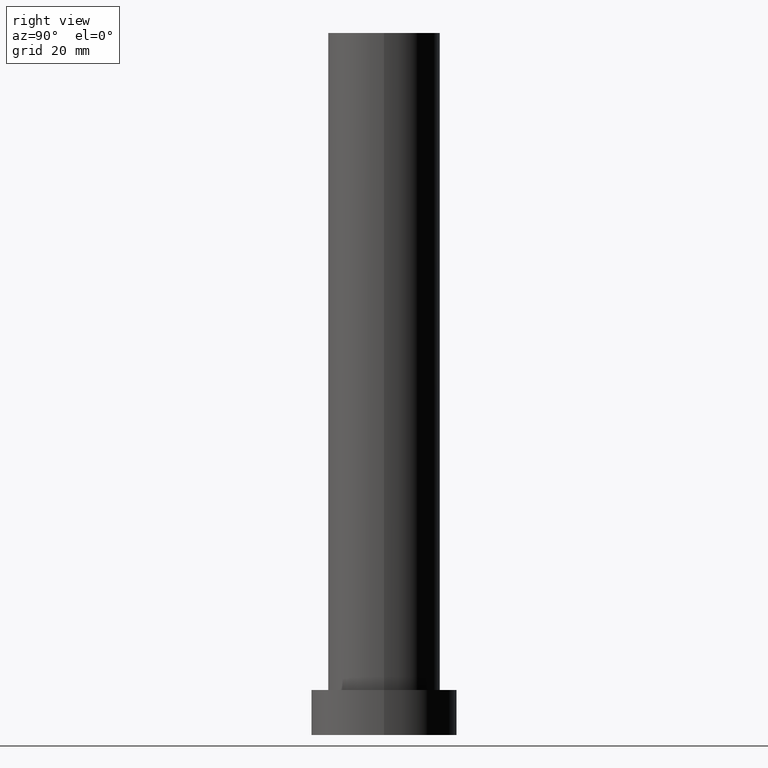
[diagram: clean part render]
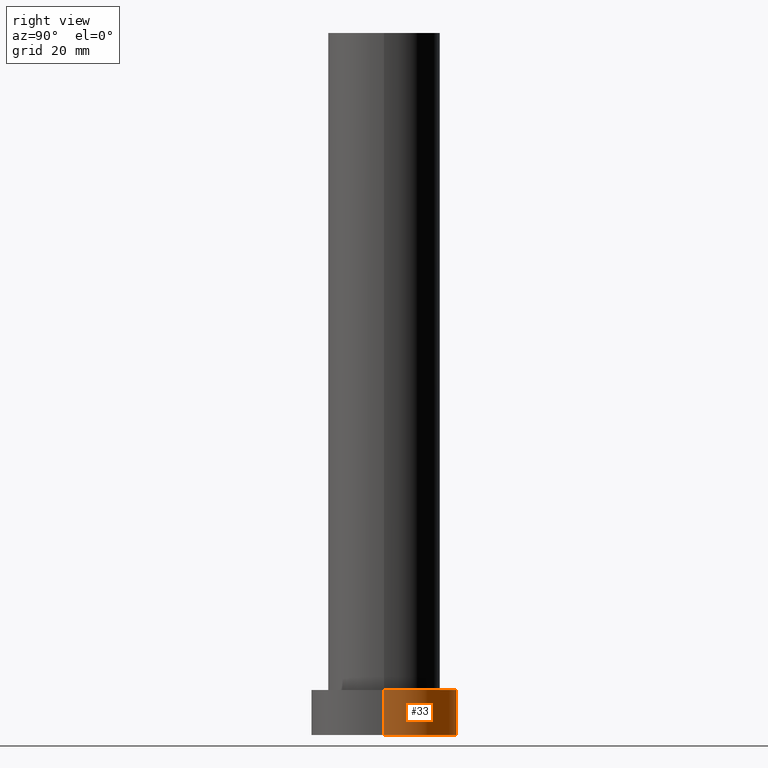
[diagram: same view with one face highlighted and labeled with its STEP entity id]
A machine part, right view. The second image highlights one B-rep face of the part: STEP entity #33.
In plain terms, the highlighted cylindrical surface (partial cylindrical patch) has radius 13 mm, axis along (-0, -0, -1).
Its self-contained STEP definition (entity closure, byte-faithful):
#4 = ORIENTED_EDGE ( 'NONE', *, *, #95, .T. ) ;
#20 = DIRECTION ( 'NONE',  ( -1.000000000000000000, 0.000000000000000000, 0.000000000000000000 ) ) ;
#24 = ORIENTED_EDGE ( 'NONE', *, *, #231, .F. ) ;
#26 = AXIS2_PLACEMENT_3D ( 'NONE', #30, #72, #53 ) ;
#30 = CARTESIAN_POINT ( 'NONE',  ( 0.000000000000000000, 0.000000000000000000, 8.000000000000000000 ) ) ;
#31 = LINE ( 'NONE', #88, #58 ) ;
#32 = VECTOR ( 'NONE', #158, 1000.000000000000000 ) ;
#33 = ADVANCED_FACE ( 'NONE', ( #38 ), #215, .T. ) ;
#34 = EDGE_CURVE ( 'NONE', #164, #203, #76, .T. ) ;
#38 = FACE_OUTER_BOUND ( 'NONE', #63, .T. ) ;
#47 = CARTESIAN_POINT ( 'NONE',  ( 13.00000000000000178, 1.592040838891559293E-15, 8.000000000000000000 ) ) ;
#50 = CARTESIAN_POINT ( 'NONE',  ( -13.00000000000000178, 0.000000000000000000, 0.000000000000000000 ) ) ;
#53 = DIRECTION ( 'NONE',  ( 1.000000000000000000, 0.000000000000000000, 0.000000000000000000 ) ) ;
#58 = VECTOR ( 'NONE', #211, 1000.000000000000000 ) ;
#63 = EDGE_LOOP ( 'NONE', ( #144, #165, #4, #24 ) ) ;
#72 = DIRECTION ( 'NONE',  ( 0.000000000000000000, 0.000000000000000000, 1.000000000000000000 ) ) ;
#75 = CARTESIAN_POINT ( 'NONE',  ( 13.00000000000000178, 1.592040838891559293E-15, 8.000000000000000000 ) ) ;
#76 = LINE ( 'NONE', #75, #32 ) ;
#88 = CARTESIAN_POINT ( 'NONE',  ( -13.00000000000000178, 0.000000000000000000, 8.000000000000000000 ) ) ;
#95 = EDGE_CURVE ( 'NONE', #203, #250, #245, .T. ) ;
#97 = DIRECTION ( 'NONE',  ( 0.000000000000000000, 0.000000000000000000, 1.000000000000000000 ) ) ;
#109 = CARTESIAN_POINT ( 'NONE',  ( 13.00000000000000178, 1.592040838891559293E-15, 0.000000000000000000 ) ) ;
#115 = AXIS2_PLACEMENT_3D ( 'NONE', #255, #97, #201 ) ;
#117 = DIRECTION ( 'NONE',  ( -0.000000000000000000, -0.000000000000000000, -1.000000000000000000 ) ) ;
#136 = CIRCLE ( 'NONE', #26, 13.00000000000000178 ) ;
#144 = ORIENTED_EDGE ( 'NONE', *, *, #193, .F. ) ;
#158 = DIRECTION ( 'NONE',  ( -0.000000000000000000, -0.000000000000000000, -1.000000000000000000 ) ) ;
#164 = VERTEX_POINT ( 'NONE', #47 ) ;
#165 = ORIENTED_EDGE ( 'NONE', *, *, #34, .T. ) ;
#171 = CARTESIAN_POINT ( 'NONE',  ( -13.00000000000000178, 0.000000000000000000, 8.000000000000000000 ) ) ;
#176 = CARTESIAN_POINT ( 'NONE',  ( 0.000000000000000000, 0.000000000000000000, 8.000000000000000000 ) ) ;
#192 = AXIS2_PLACEMENT_3D ( 'NONE', #176, #117, #20 ) ;
#193 = EDGE_CURVE ( 'NONE', #164, #220, #136, .T. ) ;
#201 = DIRECTION ( 'NONE',  ( 1.000000000000000000, 0.000000000000000000, 0.000000000000000000 ) ) ;
#203 = VERTEX_POINT ( 'NONE', #109 ) ;
#211 = DIRECTION ( 'NONE',  ( -0.000000000000000000, -0.000000000000000000, -1.000000000000000000 ) ) ;
#215 = CYLINDRICAL_SURFACE ( 'NONE', #192, 13.00000000000000178 ) ;
#220 = VERTEX_POINT ( 'NONE', #171 ) ;
#231 = EDGE_CURVE ( 'NONE', #220, #250, #31, .T. ) ;
#245 = CIRCLE ( 'NONE', #115, 13.00000000000000178 ) ;
#250 = VERTEX_POINT ( 'NONE', #50 ) ;
#255 = CARTESIAN_POINT ( 'NONE',  ( 0.000000000000000000, 0.000000000000000000, 0.000000000000000000 ) ) ;